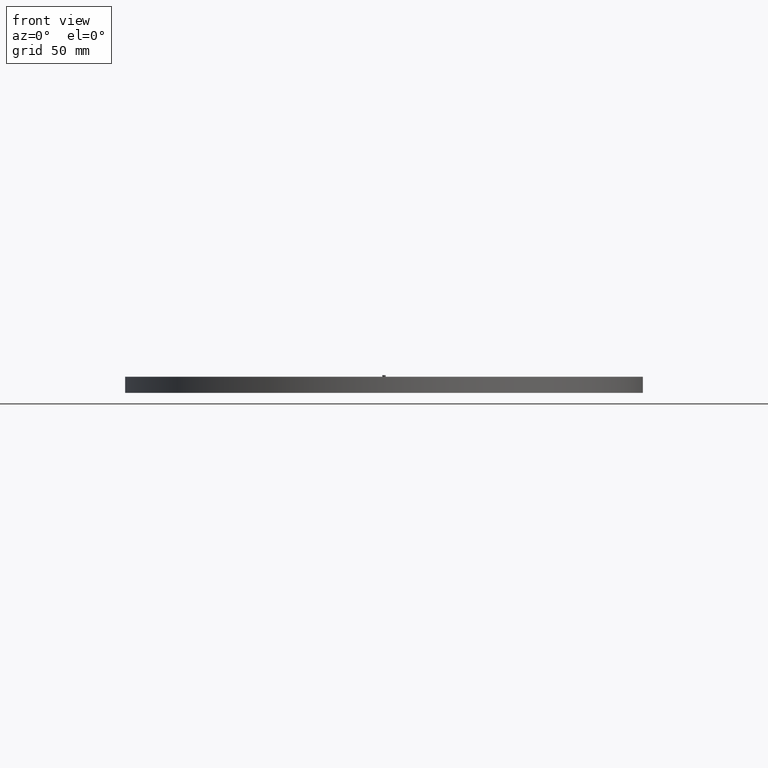
[diagram: clean part render]
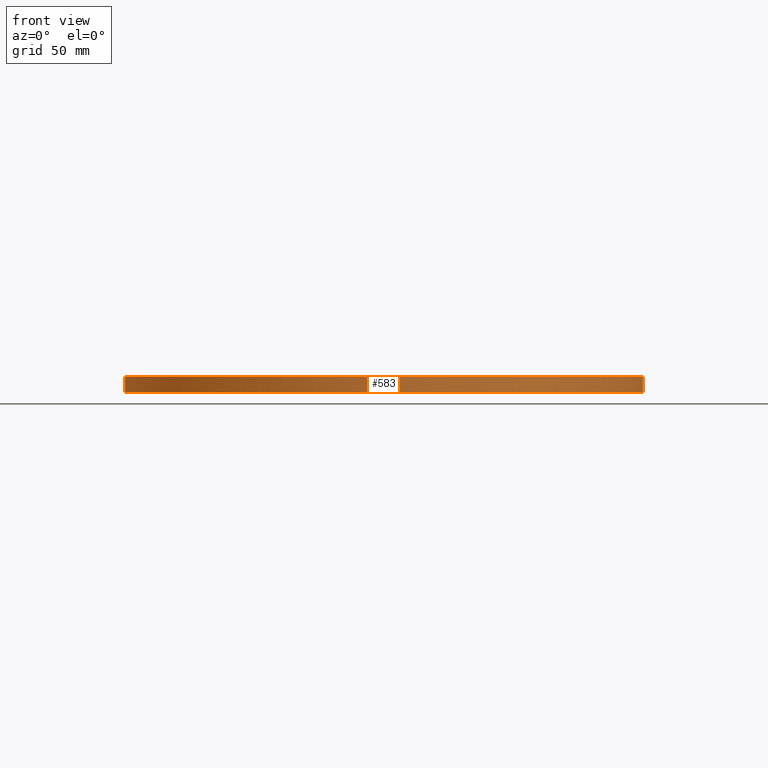
[diagram: same view with one face highlighted and labeled with its STEP entity id]
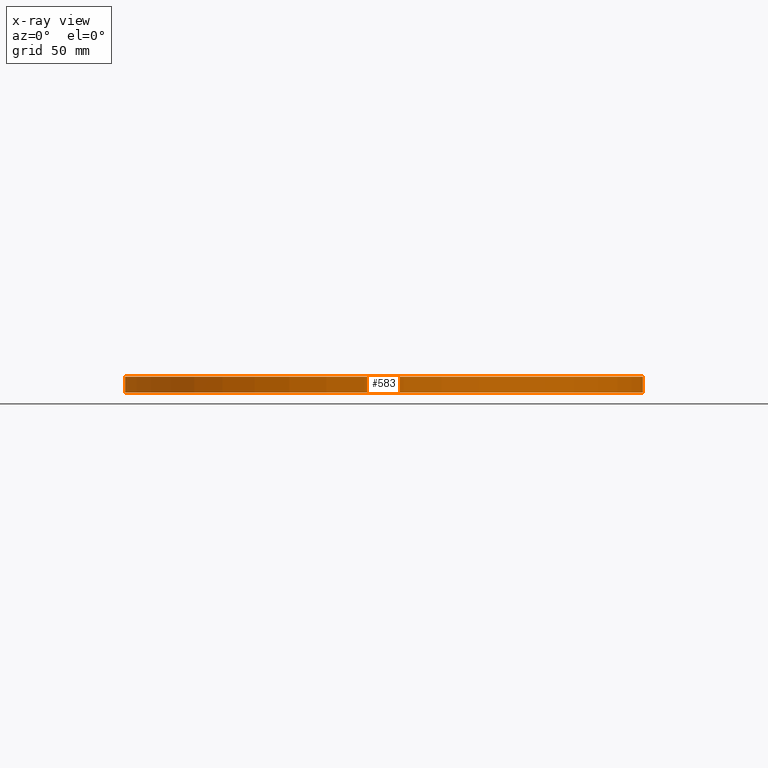
[diagram: x-ray of the same camera — body ghosted, the highlighted face saturated]
A machine part, front view. The second image highlights one B-rep face of the part: STEP entity #583.
The next image is the same camera in x-ray: the body ghosted, the highlighted face saturated — about 0% of this face is hidden behind the body in this view.
In plain terms, the highlighted cylindrical surface (partial cylindrical patch) has radius 161.5 mm, axis along (-0, -0, -1).
Its self-contained STEP definition (entity closure, byte-faithful):
#90 = AXIS2_PLACEMENT_3D ( 'NONE', #1586, #1227, #2356 ) ;
#102 = VERTEX_POINT ( 'NONE', #1175 ) ;
#166 = ORIENTED_EDGE ( 'NONE', *, *, #2229, .F. ) ;
#179 = ORIENTED_EDGE ( 'NONE', *, *, #1730, .F. ) ;
#218 = DIRECTION ( 'NONE',  ( -0.000000000000000000, -0.000000000000000000, -1.000000000000000000 ) ) ;
#259 = LINE ( 'NONE', #1025, #323 ) ;
#267 = CARTESIAN_POINT ( 'NONE',  ( 161.5000000000000000, 1.977804580622975483E-14, 0.000000000000000000 ) ) ;
#323 = VECTOR ( 'NONE', #218, 1000.000000000000000 ) ;
#539 = DIRECTION ( 'NONE',  ( 1.000000000000000000, 0.000000000000000000, 0.000000000000000000 ) ) ;
#551 = CARTESIAN_POINT ( 'NONE',  ( 0.000000000000000000, 0.000000000000000000, 10.00000000000000000 ) ) ;
#569 = ORIENTED_EDGE ( 'NONE', *, *, #1233, .T. ) ;
#583 = ADVANCED_FACE ( 'NONE', ( #2117 ), #621, .T. ) ;
#621 = CYLINDRICAL_SURFACE ( 'NONE', #1042, 161.5000000000000000 ) ;
#650 = VECTOR ( 'NONE', #733, 1000.000000000000000 ) ;
#733 = DIRECTION ( 'NONE',  ( -0.000000000000000000, -0.000000000000000000, -1.000000000000000000 ) ) ;
#769 = CIRCLE ( 'NONE', #90, 161.5000000000000000 ) ;
#916 = DIRECTION ( 'NONE',  ( 0.000000000000000000, 0.000000000000000000, 1.000000000000000000 ) ) ;
#959 = VERTEX_POINT ( 'NONE', #2187 ) ;
#1012 = DIRECTION ( 'NONE',  ( -0.000000000000000000, -0.000000000000000000, -1.000000000000000000 ) ) ;
#1025 = CARTESIAN_POINT ( 'NONE',  ( -161.5000000000000000, 0.000000000000000000, 10.00000000000000000 ) ) ;
#1042 = AXIS2_PLACEMENT_3D ( 'NONE', #2158, #1012, #1761 ) ;
#1173 = CARTESIAN_POINT ( 'NONE',  ( -161.5000000000000000, 0.000000000000000000, 10.00000000000000000 ) ) ;
#1175 = CARTESIAN_POINT ( 'NONE',  ( 161.5000000000000000, 1.977804580622975483E-14, 10.00000000000000000 ) ) ;
#1211 = CIRCLE ( 'NONE', #2011, 161.5000000000000000 ) ;
#1227 = DIRECTION ( 'NONE',  ( 0.000000000000000000, 0.000000000000000000, 1.000000000000000000 ) ) ;
#1233 = EDGE_CURVE ( 'NONE', #959, #1909, #769, .T. ) ;
#1234 = VERTEX_POINT ( 'NONE', #1173 ) ;
#1310 = EDGE_LOOP ( 'NONE', ( #166, #179, #2266, #569 ) ) ;
#1366 = EDGE_CURVE ( 'NONE', #1234, #959, #259, .T. ) ;
#1479 = LINE ( 'NONE', #2463, #650 ) ;
#1586 = CARTESIAN_POINT ( 'NONE',  ( 0.000000000000000000, 0.000000000000000000, 0.000000000000000000 ) ) ;
#1730 = EDGE_CURVE ( 'NONE', #1234, #102, #1211, .T. ) ;
#1761 = DIRECTION ( 'NONE',  ( -1.000000000000000000, 0.000000000000000000, 0.000000000000000000 ) ) ;
#1909 = VERTEX_POINT ( 'NONE', #267 ) ;
#2011 = AXIS2_PLACEMENT_3D ( 'NONE', #551, #916, #539 ) ;
#2117 = FACE_OUTER_BOUND ( 'NONE', #1310, .T. ) ;
#2158 = CARTESIAN_POINT ( 'NONE',  ( 0.000000000000000000, 0.000000000000000000, 10.00000000000000000 ) ) ;
#2187 = CARTESIAN_POINT ( 'NONE',  ( -161.5000000000000000, 0.000000000000000000, 0.000000000000000000 ) ) ;
#2229 = EDGE_CURVE ( 'NONE', #102, #1909, #1479, .T. ) ;
#2266 = ORIENTED_EDGE ( 'NONE', *, *, #1366, .T. ) ;
#2356 = DIRECTION ( 'NONE',  ( 1.000000000000000000, 0.000000000000000000, 0.000000000000000000 ) ) ;
#2463 = CARTESIAN_POINT ( 'NONE',  ( 161.5000000000000000, 1.977804580622975483E-14, 10.00000000000000000 ) ) ;